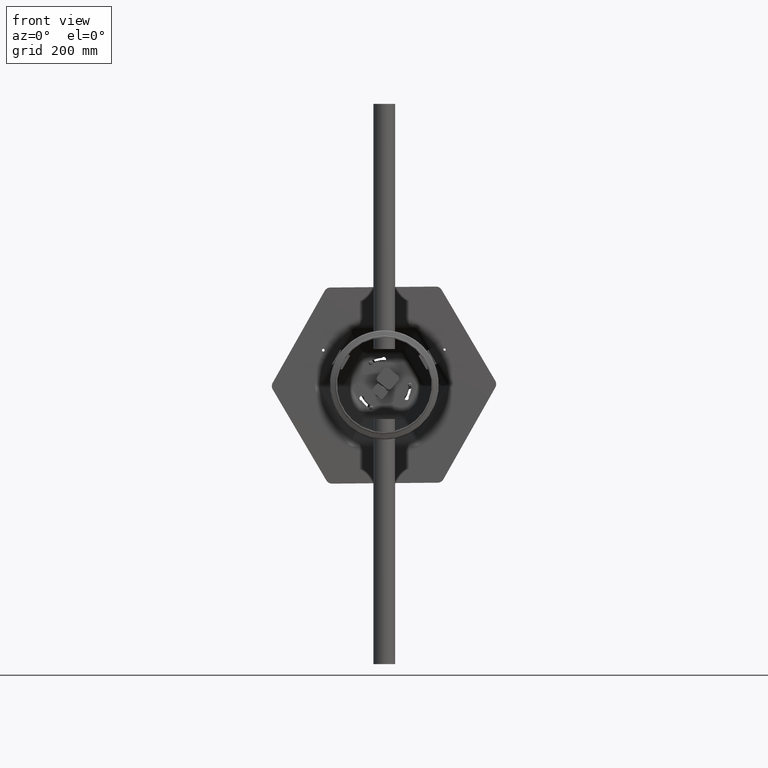
[diagram: clean part render]
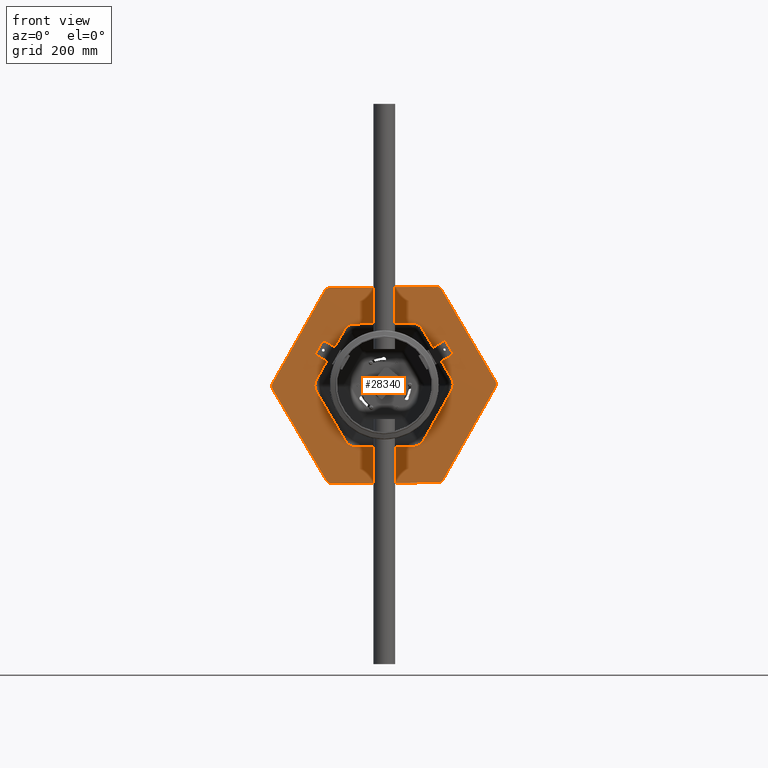
[diagram: same view with one face highlighted and labeled with its STEP entity id]
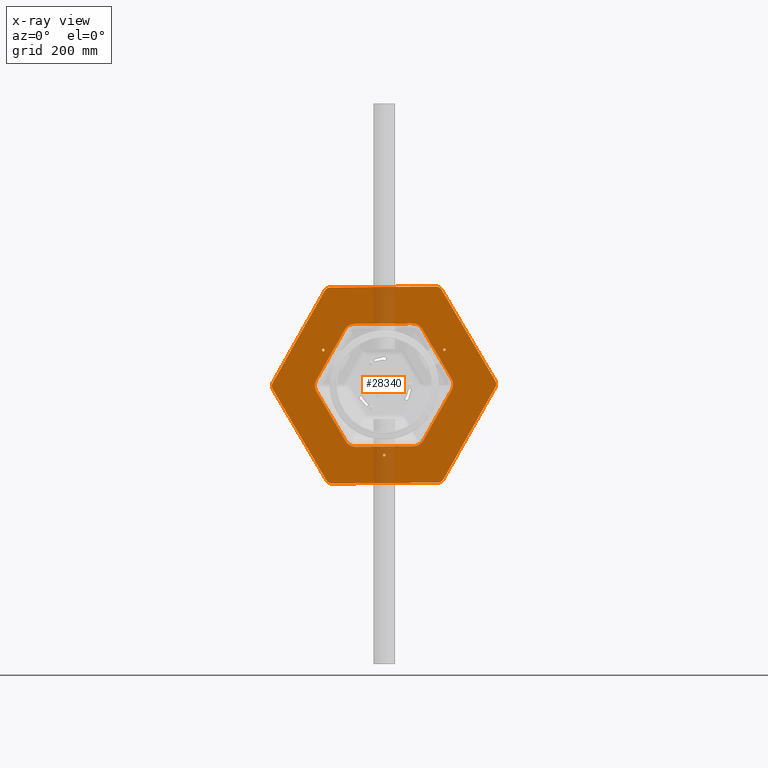
[diagram: x-ray of the same camera — body ghosted, the highlighted face saturated]
A machine part, front view. The second image highlights one B-rep face of the part: STEP entity #28340.
The next image is the same camera in x-ray: the body ghosted, the highlighted face saturated — about 8% of this face is hidden behind the body in this view.
In plain terms, the highlighted planar face has unit normal (-0, 1, 0).
Its self-contained STEP definition (entity closure, byte-faithful):
#504 = CARTESIAN_POINT ( 'NONE',  ( 112.8088919301160331, 1.068607339280240081E-13, 0.0000000000000000000 ) ) ;
#519 = ORIENTED_EDGE ( 'NONE', *, *, #39290, .F. ) ;
#523 = ORIENTED_EDGE ( 'NONE', *, *, #37301, .T. ) ;
#591 = AXIS2_PLACEMENT_3D ( 'NONE', #20092, #45070, #23690 ) ;
#631 = ORIENTED_EDGE ( 'NONE', *, *, #38746, .T. ) ;
#1304 = CARTESIAN_POINT ( 'NONE',  ( -102.2335756172568466, -71.23590584283074634, 0.0000000000000000000 ) ) ;
#1372 = CARTESIAN_POINT ( 'NONE',  ( 61.19974159824982252, 111.8859771665176766, 0.0000000000000000000 ) ) ;
#1731 = AXIS2_PLACEMENT_3D ( 'NONE', #3036, #28125, #6619 ) ;
#1756 = CARTESIAN_POINT ( 'NONE',  ( -112.8088919301161042, -52.91892068284656858, 0.0000000000000000000 ) ) ;
#2083 =( BOUNDED_CURVE ( )  B_SPLINE_CURVE ( 3, ( #33890, #5187, #37496, #16056 ),
 .UNSPECIFIED., .F., .F. ) 
 B_SPLINE_CURVE_WITH_KNOTS ( ( 4, 4 ),
 ( 2.640144173555560414, 3.643041133624024930 ),
 .UNSPECIFIED. ) 
 CURVE ( )  GEOMETRIC_REPRESENTATION_ITEM ( )  RATIONAL_B_SPLINE_CURVE ( ( 1.000000000000000000, 0.9179248021248425093, 0.9179248021248425093, 1.000000000000000000 ) ) 
 REPRESENTATION_ITEM ( '' )  );
#2292 = CARTESIAN_POINT ( 'NONE',  ( 7.806255641895631925E-15, 193.9896904477142527, 0.0000000000000000000 ) ) ;
#2441 = ORIENTED_EDGE ( 'NONE', *, *, #14442, .T. ) ;
#2538 = EDGE_CURVE ( 'NONE', #35388, #18569, #16234, .T. ) ;
#3036 = CARTESIAN_POINT ( 'NONE',  ( -168.0000000000000000, 96.99484522385709795, 0.0000000000000000000 ) ) ;
#3234 = VERTEX_POINT ( 'NONE', #44021 ) ;
#3351 = ORIENTED_EDGE ( 'NONE', *, *, #11552, .T. ) ;
#3444 = EDGE_LOOP ( 'NONE', ( #42016, #23944, #11982, #44883, #11850, #36271, #36917, #6567, #5769, #21012, #2441, #523 ) ) ;
#3460 = CARTESIAN_POINT ( 'NONE',  ( -1.821459649775647449E-14, -193.9896904477142812, 0.0000000000000000000 ) ) ;
#3506 = CARTESIAN_POINT ( 'NONE',  ( -6.000000000000008882, 204.3819952931275168, 0.0000000000000000000 ) ) ;
#3533 = LINE ( 'NONE', #40432, #39397 ) ;
#3765 = AXIS2_PLACEMENT_3D ( 'NONE', #39438, #18024, #42990 ) ;
#3791 = CARTESIAN_POINT ( 'NONE',  ( 112.8088919301160900, -52.91892068284654016, 0.0000000000000000000 ) ) ;
#3979 = EDGE_CURVE ( 'NONE', #41088, #39535, #39113, .T. ) ;
#4050 = ORIENTED_EDGE ( 'NONE', *, *, #21219, .T. ) ;
#4083 = DIRECTION ( 'NONE',  ( -9.472722593022467068E-16, 1.000000000000000000, -0.0000000000000000000 ) ) ;
#4086 = CIRCLE ( 'NONE', #591, 12.00000000000001066 ) ;
#4200 = VERTEX_POINT ( 'NONE', #45866 ) ;
#4406 =( BOUNDED_CURVE ( )  B_SPLINE_CURVE ( 3, ( #1756, #26826, #12553, #37628 ),
 .UNSPECIFIED., .F., .F. ) 
 B_SPLINE_CURVE_WITH_KNOTS ( ( 4, 4 ),
 ( 2.640144173555559526, 3.643041133624025818 ),
 .UNSPECIFIED. ) 
 CURVE ( )  GEOMETRIC_REPRESENTATION_ITEM ( )  RATIONAL_B_SPLINE_CURVE ( ( 1.000000000000000000, 0.9179248021248422873, 0.9179248021248422873, 1.000000000000000000 ) ) 
 REPRESENTATION_ITEM ( '' )  );
#4512 = EDGE_CURVE ( 'NONE', #5458, #39842, #40187, .T. ) ;
#4583 = DIRECTION ( 'NONE',  ( 0.0000000000000000000, 0.0000000000000000000, -1.000000000000000000 ) ) ;
#5187 = CARTESIAN_POINT ( 'NONE',  ( -108.9685932156030077, 67.34744161942873575, 0.0000000000000000000 ) ) ;
#5359 = DIRECTION ( 'NONE',  ( -0.8660254037844385966, -0.5000000000000002220, 0.0000000000000000000 ) ) ;
#5379 = AXIS2_PLACEMENT_3D ( 'NONE', #40659, #19257, #44229 ) ;
#5458 = VERTEX_POINT ( 'NONE', #37121 ) ;
#5630 = ORIENTED_EDGE ( 'NONE', *, *, #3979, .F. ) ;
#5769 = ORIENTED_EDGE ( 'NONE', *, *, #31368, .T. ) ;
#5887 = DIRECTION ( 'NONE',  ( 1.000000000000000000, 4.625929269271485322E-15, 0.0000000000000000000 ) ) ;
#5891 = EDGE_CURVE ( 'NONE', #38718, #8217, #37312, .T. ) ;
#6043 = CARTESIAN_POINT ( 'NONE',  ( -112.8088919301161326, -5.343036696401209239E-14, 0.0000000000000000000 ) ) ;
#6101 = DIRECTION ( 'NONE',  ( -0.8660254037844385966, 0.5000000000000000000, 0.0000000000000000000 ) ) ;
#6567 = ORIENTED_EDGE ( 'NONE', *, *, #22599, .T. ) ;
#6601 = ORIENTED_EDGE ( 'NONE', *, *, #10633, .T. ) ;
#6619 = DIRECTION ( 'NONE',  ( 1.000000000000000000, 0.0000000000000000000, 0.0000000000000000000 ) ) ;
#7047 = DIRECTION ( 'NONE',  ( 1.000000000000000000, -2.312964634635742661E-15, 0.0000000000000000000 ) ) ;
#7123 = EDGE_CURVE ( 'NONE', #35605, #11692, #3533, .T. ) ;
#7125 = CARTESIAN_POINT ( 'NONE',  ( 112.8088919301159763, 60.69584912965067502, 0.0000000000000000000 ) ) ;
#7328 = ORIENTED_EDGE ( 'NONE', *, *, #14103, .F. ) ;
#7343 = VERTEX_POINT ( 'NONE', #31189 ) ;
#7594 = CARTESIAN_POINT ( 'NONE',  ( -174.0000000000000853, 107.3871500692703194, 0.0000000000000000000 ) ) ;
#7633 = CIRCLE ( 'NONE', #3765, 2.499999999999919176 ) ;
#8034 = LINE ( 'NONE', #23148, #35537 ) ;
#8217 = VERTEX_POINT ( 'NONE', #34781 ) ;
#8266 = ORIENTED_EDGE ( 'NONE', *, *, #35359, .F. ) ;
#8331 = VERTEX_POINT ( 'NONE', #21313 ) ;
#9130 = CARTESIAN_POINT ( 'NONE',  ( -10.57531631285923446, -124.1548265256772225, 0.0000000000000000000 ) ) ;
#9160 = EDGE_LOOP ( 'NONE', ( #41718, #22083 ) ) ;
#10162 = CARTESIAN_POINT ( 'NONE',  ( 56.40444596505805919, -97.69536618425394181, 0.0000000000000000000 ) ) ;
#10193 = DIRECTION ( 'NONE',  ( -0.0000000000000000000, -0.0000000000000000000, -1.000000000000000000 ) ) ;
#10252 = ORIENTED_EDGE ( 'NONE', *, *, #22780, .T. ) ;
#10272 = ORIENTED_EDGE ( 'NONE', *, *, #27599, .T. ) ;
#10633 = EDGE_CURVE ( 'NONE', #29306, #26078, #17530, .T. ) ;
#10751 = CARTESIAN_POINT ( 'NONE',  ( 102.2335756172567471, 71.23590584283083160, 0.0000000000000000000 ) ) ;
#10754 = FACE_OUTER_BOUND ( 'NONE', #42409, .T. ) ;
#11358 = CIRCLE ( 'NONE', #5379, 2.500000000000023093 ) ;
#11411 = CARTESIAN_POINT ( 'NONE',  ( 63.69974159824984383, 111.8859771665176766, 0.0000000000000000000 ) ) ;
#11552 = EDGE_CURVE ( 'NONE', #41088, #39842, #34804, .T. ) ;
#11692 = VERTEX_POINT ( 'NONE', #17674 ) ;
#11850 = ORIENTED_EDGE ( 'NONE', *, *, #32327, .T. ) ;
#11874 = FACE_BOUND ( 'NONE', #36967, .T. ) ;
#11956 = EDGE_CURVE ( 'NONE', #18569, #17220, #45937, .T. ) ;
#11982 = ORIENTED_EDGE ( 'NONE', *, *, #45579, .T. ) ;
#12155 = CIRCLE ( 'NONE', #29591, 12.00000000000001066 ) ;
#12553 = CARTESIAN_POINT ( 'NONE',  ( -108.9685932156029793, -67.34744161942873575, 0.0000000000000000000 ) ) ;
#12613 = DIRECTION ( 'NONE',  ( 0.8660254037844385966, -0.4999999999999999445, 0.0000000000000000000 ) ) ;
#12680 = ORIENTED_EDGE ( 'NONE', *, *, #4512, .F. ) ;
#12836 = CARTESIAN_POINT ( 'NONE',  ( -3.642919299551294898E-14, -207.8460969082653094, 0.0000000000000000000 ) ) ;
#13248 = CIRCLE ( 'NONE', #19151, 2.499999999999919176 ) ;
#13582 = DIRECTION ( 'NONE',  ( 4.736361296511237478E-16, -1.000000000000000000, -0.0000000000000000000 ) ) ;
#13604 = VECTOR ( 'NONE', #44564, 1000.000000000000114 ) ;
#13787 = DIRECTION ( 'NONE',  ( 0.8660254037844387076, 0.4999999999999998890, -0.0000000000000000000 ) ) ;
#13926 = AXIS2_PLACEMENT_3D ( 'NONE', #16192, #41190, #19800 ) ;
#14011 = EDGE_CURVE ( 'NONE', #16452, #37443, #7633, .T. ) ;
#14103 = EDGE_CURVE ( 'NONE', #3234, #19969, #24479, .T. ) ;
#14127 = AXIS2_PLACEMENT_3D ( 'NONE', #26052, #4583, #29660 ) ;
#14362 = EDGE_LOOP ( 'NONE', ( #21299, #7328 ) ) ;
#14402 = CIRCLE ( 'NONE', #14127, 2.499999999999925837 ) ;
#14442 = EDGE_CURVE ( 'NONE', #8331, #31281, #37329, .T. ) ;
#15029 = DIRECTION ( 'NONE',  ( -1.000000000000000000, 0.0000000000000000000, 0.0000000000000000000 ) ) ;
#15060 = CARTESIAN_POINT ( 'NONE',  ( -128.5606159927932879, -0.9905632959438803731, 0.0000000000000000000 ) ) ;
#15416 = CARTESIAN_POINT ( 'NONE',  ( 108.9685932156029367, -67.34744161942870733, 0.0000000000000000000 ) ) ;
#16056 = CARTESIAN_POINT ( 'NONE',  ( -112.8088919301161610, 52.91892068284657569, 0.0000000000000000000 ) ) ;
#16192 = CARTESIAN_POINT ( 'NONE',  ( 168.0000000000000284, -96.99484522385709795, 0.0000000000000000000 ) ) ;
#16234 = LINE ( 'NONE', #24099, #44726 ) ;
#16389 = CARTESIAN_POINT ( 'NONE',  ( 112.8088919301159763, 52.91892068284668937, 0.0000000000000000000 ) ) ;
#16424 = AXIS2_PLACEMENT_3D ( 'NONE', #3460, #28565, #7047 ) ;
#16452 = VERTEX_POINT ( 'NONE', #20574 ) ;
#16475 = DIRECTION ( 'NONE',  ( 0.8660254037844385966, 0.5000000000000001110, 0.0000000000000000000 ) ) ;
#17162 = AXIS2_PLACEMENT_3D ( 'NONE', #42356, #20965, #45938 ) ;
#17220 = VERTEX_POINT ( 'NONE', #43584 ) ;
#17300 = LINE ( 'NONE', #12836, #25664 ) ;
#17530 = CIRCLE ( 'NONE', #16424, 12.00000000000000000 ) ;
#17674 = CARTESIAN_POINT ( 'NONE',  ( -180.0000000000000284, -96.99484522385709795, 0.0000000000000000000 ) ) ;
#17734 = VERTEX_POINT ( 'NONE', #33220 ) ;
#18024 = DIRECTION ( 'NONE',  ( 0.0000000000000000000, 0.0000000000000000000, -1.000000000000000000 ) ) ;
#18071 = ORIENTED_EDGE ( 'NONE', *, *, #5891, .F. ) ;
#18286 = VECTOR ( 'NONE', #13582, 1000.000000000000000 ) ;
#18418 = CARTESIAN_POINT ( 'NONE',  ( 102.2335756172567471, 71.23590584283083160, 0.0000000000000000000 ) ) ;
#18489 = VECTOR ( 'NONE', #13787, 1000.000000000000000 ) ;
#18569 = VERTEX_POINT ( 'NONE', #41871 ) ;
#18677 = DIRECTION ( 'NONE',  ( -1.000000000000000000, 0.0000000000000000000, 0.0000000000000000000 ) ) ;
#18959 = CARTESIAN_POINT ( 'NONE',  ( -112.8088919301161042, -52.91892068284656858, 0.0000000000000000000 ) ) ;
#19151 = AXIS2_PLACEMENT_3D ( 'NONE', #15060, #40076, #18677 ) ;
#19257 = DIRECTION ( 'NONE',  ( 0.0000000000000000000, 0.0000000000000000000, -1.000000000000000000 ) ) ;
#19402 = CARTESIAN_POINT ( 'NONE',  ( 64.49258023428306785, -110.8974878807649702, -0.0000000000000000000 ) ) ;
#19599 = CARTESIAN_POINT ( 'NONE',  ( 56.40444596505804498, 97.69536618425398444, 0.0000000000000000000 ) ) ;
#19742 = DIRECTION ( 'NONE',  ( -0.8660254037844388186, -0.4999999999999997224, 0.0000000000000000000 ) ) ;
#19800 = DIRECTION ( 'NONE',  ( 1.000000000000000000, 0.0000000000000000000, 0.0000000000000000000 ) ) ;
#19850 = CARTESIAN_POINT ( 'NONE',  ( 3.840298714513155964, 128.0432907490792047, 0.0000000000000000000 ) ) ;
#19969 = VERTEX_POINT ( 'NONE', #1372 ) ;
#20092 = CARTESIAN_POINT ( 'NONE',  ( 168.0000000000000284, 96.99484522385711216, 0.0000000000000000000 ) ) ;
#20102 = VECTOR ( 'NONE', #5359, 999.9999999999998863 ) ;
#20308 = FACE_BOUND ( 'NONE', #3444, .T. ) ;
#20574 = CARTESIAN_POINT ( 'NONE',  ( -126.0606159927933589, -0.9905632959438801510, 0.0000000000000000000 ) ) ;
#20965 = DIRECTION ( 'NONE',  ( 0.0000000000000000000, 0.0000000000000000000, 1.000000000000000000 ) ) ;
#21012 = ORIENTED_EDGE ( 'NONE', *, *, #44909, .T. ) ;
#21178 = VECTOR ( 'NONE', #6101, 1000.000000000000227 ) ;
#21219 = EDGE_CURVE ( 'NONE', #4200, #11692, #12155, .T. ) ;
#21299 = ORIENTED_EDGE ( 'NONE', *, *, #43870, .F. ) ;
#21313 = CARTESIAN_POINT ( 'NONE',  ( -112.8088919301161610, 52.91892068284657569, 0.0000000000000000000 ) ) ;
#21858 = LINE ( 'NONE', #34423, #39750 ) ;
#21944 = CARTESIAN_POINT ( 'NONE',  ( 180.0000000000000568, -96.99484522385709795, 0.0000000000000000000 ) ) ;
#22083 = ORIENTED_EDGE ( 'NONE', *, *, #14011, .F. ) ;
#22384 = VERTEX_POINT ( 'NONE', #3791 ) ;
#22584 = CARTESIAN_POINT ( 'NONE',  ( 112.8088919301160900, -52.91892068284654016, 0.0000000000000000000 ) ) ;
#22599 = EDGE_CURVE ( 'NONE', #36361, #37677, #44561, .T. ) ;
#22628 = LINE ( 'NONE', #504, #38310 ) ;
#22780 = EDGE_CURVE ( 'NONE', #35605, #39535, #39794, .T. ) ;
#22918 = CARTESIAN_POINT ( 'NONE',  ( 180.0000000000000568, 96.99484522385711216, 0.0000000000000000000 ) ) ;
#22974 = DIRECTION ( 'NONE',  ( -1.000000000000000000, 0.0000000000000000000, 0.0000000000000000000 ) ) ;
#23148 = CARTESIAN_POINT ( 'NONE',  ( -56.40444596505804498, 97.69536618425397023, 0.0000000000000000000 ) ) ;
#23221 = CARTESIAN_POINT ( 'NONE',  ( 66.99258023428301101, -110.8974878807649702, 0.0000000000000000000 ) ) ;
#23420 = CARTESIAN_POINT ( 'NONE',  ( -10.57531631285922202, 124.1548265256771941, 0.0000000000000000000 ) ) ;
#23690 = DIRECTION ( 'NONE',  ( 1.000000000000000000, -1.156482317317870344E-15, 0.0000000000000000000 ) ) ;
#23944 = ORIENTED_EDGE ( 'NONE', *, *, #11956, .T. ) ;
#24099 = CARTESIAN_POINT ( 'NONE',  ( -56.40444596505805919, -97.69536618425395602, 0.0000000000000000000 ) ) ;
#24479 = CIRCLE ( 'NONE', #30194, 2.500000000000023093 ) ;
#25008 = CARTESIAN_POINT ( 'NONE',  ( 108.9685932156028372, 67.34744161942882101, 0.0000000000000000000 ) ) ;
#25265 = CIRCLE ( 'NONE', #13926, 12.00000000000001066 ) ;
#25477 = VERTEX_POINT ( 'NONE', #43266 ) ;
#25664 = VECTOR ( 'NONE', #16475, 1000.000000000000000 ) ;
#25874 = CARTESIAN_POINT ( 'NONE',  ( 102.2335756172568466, -71.23590584283071792, 0.0000000000000000000 ) ) ;
#26052 = CARTESIAN_POINT ( 'NONE',  ( 64.49258023428306785, -110.8974878807649702, -0.0000000000000000000 ) ) ;
#26078 = VERTEX_POINT ( 'NONE', #28738 ) ;
#26826 = CARTESIAN_POINT ( 'NONE',  ( -112.8088919301161326, -60.69584912965056844, 0.0000000000000000000 ) ) ;
#27015 = CARTESIAN_POINT ( 'NONE',  ( -3.840298714513123546, -128.0432907490792331, 0.0000000000000000000 ) ) ;
#27379 = DIRECTION ( 'NONE',  ( -0.0000000000000000000, -0.0000000000000000000, -1.000000000000000000 ) ) ;
#27591 = CARTESIAN_POINT ( 'NONE',  ( 180.0000000000000568, 103.9230484541326121, 0.0000000000000000000 ) ) ;
#27599 = EDGE_CURVE ( 'NONE', #5458, #44887, #4086, .T. ) ;
#27860 = PLANE ( 'NONE',  #17162 ) ;
#28125 = DIRECTION ( 'NONE',  ( -0.0000000000000000000, -0.0000000000000000000, -1.000000000000000000 ) ) ;
#28340 = ADVANCED_FACE ( 'NONE', ( #11874, #41545, #29817, #20308, #10754 ), #27860, .F. ) ;
#28453 = EDGE_CURVE ( 'NONE', #38264, #42699, #32797, .T. ) ;
#28565 = DIRECTION ( 'NONE',  ( -0.0000000000000000000, -0.0000000000000000000, -1.000000000000000000 ) ) ;
#28738 = CARTESIAN_POINT ( 'NONE',  ( -6.000000000000116351, -204.3819952931275168, 0.0000000000000000000 ) ) ;
#29306 = VERTEX_POINT ( 'NONE', #45371 ) ;
#29591 = AXIS2_PLACEMENT_3D ( 'NONE', #31640, #10193, #35275 ) ;
#29660 = DIRECTION ( 'NONE',  ( -1.000000000000000000, 0.0000000000000000000, 0.0000000000000000000 ) ) ;
#29817 = FACE_BOUND ( 'NONE', #14362, .T. ) ;
#30194 = AXIS2_PLACEMENT_3D ( 'NONE', #11411, #36475, #15029 ) ;
#30746 = EDGE_CURVE ( 'NONE', #7343, #22384, #34831, .T. ) ;
#31189 = CARTESIAN_POINT ( 'NONE',  ( 102.2335756172568466, -71.23590584283071792, 0.0000000000000000000 ) ) ;
#31270 = DIRECTION ( 'NONE',  ( 0.8660254037844387076, -0.4999999999999998335, -0.0000000000000000000 ) ) ;
#31281 = VERTEX_POINT ( 'NONE', #18959 ) ;
#31368 = EDGE_CURVE ( 'NONE', #37677, #25477, #8034, .T. ) ;
#31623 = VECTOR ( 'NONE', #12613, 1000.000000000000114 ) ;
#31640 = CARTESIAN_POINT ( 'NONE',  ( -168.0000000000000000, -96.99484522385716900, 0.0000000000000000000 ) ) ;
#32204 = CARTESIAN_POINT ( 'NONE',  ( 112.8088919301159763, 52.91892068284668937, 0.0000000000000000000 ) ) ;
#32327 = EDGE_CURVE ( 'NONE', #22384, #38264, #22628, .T. ) ;
#32797 =( BOUNDED_CURVE ( )  B_SPLINE_CURVE ( 3, ( #32204, #7125, #25008, #10751 ),
 .UNSPECIFIED., .F., .F. ) 
 B_SPLINE_CURVE_WITH_KNOTS ( ( 4, 4 ),
 ( 2.640144173555559526, 3.643041133624023153 ),
 .UNSPECIFIED. ) 
 CURVE ( )  GEOMETRIC_REPRESENTATION_ITEM ( )  RATIONAL_B_SPLINE_CURVE ( ( 1.000000000000000000, 0.9179248021248425093, 0.9179248021248425093, 1.000000000000000000 ) ) 
 REPRESENTATION_ITEM ( '' )  );
#33022 = EDGE_CURVE ( 'NONE', #42699, #36361, #41020, .T. ) ;
#33220 = CARTESIAN_POINT ( 'NONE',  ( 174.0000000000000568, -107.3871500692703336, 0.0000000000000000000 ) ) ;
#33890 = CARTESIAN_POINT ( 'NONE',  ( -102.2335756172569035, 71.23590584283071792, 0.0000000000000000000 ) ) ;
#34051 = CARTESIAN_POINT ( 'NONE',  ( 3.840298714513109335, -128.0432907490792331, 0.0000000000000000000 ) ) ;
#34077 = CARTESIAN_POINT ( 'NONE',  ( -180.0000000000000284, -103.9230484541326831, 0.0000000000000000000 ) ) ;
#34206 = CARTESIAN_POINT ( 'NONE',  ( 10.57531631285921492, -124.1548265256772083, 0.0000000000000000000 ) ) ;
#34423 = CARTESIAN_POINT ( 'NONE',  ( 180.0000000000000568, -103.9230484541325978, 0.0000000000000000000 ) ) ;
#34689 = CARTESIAN_POINT ( 'NONE',  ( 6.000000000000032863, 204.3819952931275168, 0.0000000000000000000 ) ) ;
#34781 = CARTESIAN_POINT ( 'NONE',  ( 61.99258023428314601, -110.8974878807649702, -0.0000000000000000000 ) ) ;
#34804 = CIRCLE ( 'NONE', #40105, 12.00000000000000000 ) ;
#34831 =( BOUNDED_CURVE ( )  B_SPLINE_CURVE ( 3, ( #25874, #15416, #43978, #22584 ),
 .UNSPECIFIED., .F., .F. ) 
 B_SPLINE_CURVE_WITH_KNOTS ( ( 4, 4 ),
 ( 2.640144173555562190, 3.643041133624028038 ),
 .UNSPECIFIED. ) 
 CURVE ( )  GEOMETRIC_REPRESENTATION_ITEM ( )  RATIONAL_B_SPLINE_CURVE ( ( 1.000000000000000000, 0.9179248021248422873, 0.9179248021248422873, 1.000000000000000000 ) ) 
 REPRESENTATION_ITEM ( '' )  );
#35275 = DIRECTION ( 'NONE',  ( 1.000000000000000000, 2.312964634635740689E-15, 0.0000000000000000000 ) ) ;
#35359 = EDGE_CURVE ( 'NONE', #8217, #38718, #14402, .T. ) ;
#35388 = VERTEX_POINT ( 'NONE', #1304 ) ;
#35537 = VECTOR ( 'NONE', #19742, 1000.000000000000000 ) ;
#35605 = VERTEX_POINT ( 'NONE', #41963 ) ;
#35710 = ORIENTED_EDGE ( 'NONE', *, *, #40209, .F. ) ;
#36271 = ORIENTED_EDGE ( 'NONE', *, *, #28453, .T. ) ;
#36361 = VERTEX_POINT ( 'NONE', #39090 ) ;
#36475 = DIRECTION ( 'NONE',  ( 0.0000000000000000000, 0.0000000000000000000, -1.000000000000000000 ) ) ;
#36642 = CARTESIAN_POINT ( 'NONE',  ( -10.57531631285922202, 124.1548265256771941, 0.0000000000000000000 ) ) ;
#36737 = EDGE_CURVE ( 'NONE', #4200, #26078, #40027, .T. ) ;
#36917 = ORIENTED_EDGE ( 'NONE', *, *, #33022, .T. ) ;
#36967 = EDGE_LOOP ( 'NONE', ( #8266, #18071 ) ) ;
#37121 = CARTESIAN_POINT ( 'NONE',  ( 174.0000000000000568, 107.3871500692703620, 0.0000000000000000000 ) ) ;
#37301 = EDGE_CURVE ( 'NONE', #31281, #35388, #4406, .T. ) ;
#37312 = CIRCLE ( 'NONE', #42293, 2.499999999999925837 ) ;
#37329 = LINE ( 'NONE', #6043, #18286 ) ;
#37443 = VERTEX_POINT ( 'NONE', #45218 ) ;
#37496 = CARTESIAN_POINT ( 'NONE',  ( -112.8088919301161468, 60.69584912965056134, 0.0000000000000000000 ) ) ;
#37531 = LINE ( 'NONE', #10162, #18489 ) ;
#37628 = CARTESIAN_POINT ( 'NONE',  ( -102.2335756172568466, -71.23590584283074634, 0.0000000000000000000 ) ) ;
#37651 = CARTESIAN_POINT ( 'NONE',  ( 1.040834085586084257E-14, 207.8460969082652809, 0.0000000000000000000 ) ) ;
#37677 = VERTEX_POINT ( 'NONE', #36642 ) ;
#38264 = VERTEX_POINT ( 'NONE', #16389 ) ;
#38310 = VECTOR ( 'NONE', #4083, 1000.000000000000000 ) ;
#38334 = ORIENTED_EDGE ( 'NONE', *, *, #7123, .F. ) ;
#38718 = VERTEX_POINT ( 'NONE', #23221 ) ;
#38746 = EDGE_CURVE ( 'NONE', #41630, #17734, #25265, .T. ) ;
#39090 = CARTESIAN_POINT ( 'NONE',  ( 10.57531631285927531, 124.1548265256771941, 0.0000000000000000000 ) ) ;
#39113 = LINE ( 'NONE', #37651, #20102 ) ;
#39290 = EDGE_CURVE ( 'NONE', #41630, #44887, #21858, .T. ) ;
#39397 = VECTOR ( 'NONE', #44000, 1000.000000000000000 ) ;
#39438 = CARTESIAN_POINT ( 'NONE',  ( -128.5606159927932879, -0.9905632959438803731, 0.0000000000000000000 ) ) ;
#39535 = VERTEX_POINT ( 'NONE', #7594 ) ;
#39750 = VECTOR ( 'NONE', #41751, 1000.000000000000000 ) ;
#39794 = CIRCLE ( 'NONE', #1731, 12.00000000000001066 ) ;
#39842 = VERTEX_POINT ( 'NONE', #34689 ) ;
#40027 = LINE ( 'NONE', #34077, #31623 ) ;
#40076 = DIRECTION ( 'NONE',  ( 0.0000000000000000000, 0.0000000000000000000, -1.000000000000000000 ) ) ;
#40105 = AXIS2_PLACEMENT_3D ( 'NONE', #2292, #27379, #5887 ) ;
#40187 = LINE ( 'NONE', #27591, #21178 ) ;
#40209 = EDGE_CURVE ( 'NONE', #29306, #17734, #17300, .T. ) ;
#40432 = CARTESIAN_POINT ( 'NONE',  ( -180.0000000000000284, 103.9230484541325836, 0.0000000000000000000 ) ) ;
#40659 = CARTESIAN_POINT ( 'NONE',  ( 63.69974159824984383, 111.8859771665176766, 0.0000000000000000000 ) ) ;
#41020 = LINE ( 'NONE', #19599, #13604 ) ;
#41083 = CARTESIAN_POINT ( 'NONE',  ( -3.840298714513100897, 128.0432907490792047, 0.0000000000000000000 ) ) ;
#41088 = VERTEX_POINT ( 'NONE', #3506 ) ;
#41190 = DIRECTION ( 'NONE',  ( -0.0000000000000000000, -0.0000000000000000000, -1.000000000000000000 ) ) ;
#41545 = FACE_BOUND ( 'NONE', #9160, .T. ) ;
#41630 = VERTEX_POINT ( 'NONE', #21944 ) ;
#41684 = EDGE_CURVE ( 'NONE', #37443, #16452, #13248, .T. ) ;
#41718 = ORIENTED_EDGE ( 'NONE', *, *, #41684, .F. ) ;
#41751 = DIRECTION ( 'NONE',  ( 0.0000000000000000000, 1.000000000000000000, 0.0000000000000000000 ) ) ;
#41829 = ORIENTED_EDGE ( 'NONE', *, *, #36737, .F. ) ;
#41871 = CARTESIAN_POINT ( 'NONE',  ( -10.57531631285923446, -124.1548265256772225, 0.0000000000000000000 ) ) ;
#41963 = CARTESIAN_POINT ( 'NONE',  ( -180.0000000000000284, 96.99484522385709795, 0.0000000000000000000 ) ) ;
#42016 = ORIENTED_EDGE ( 'NONE', *, *, #2538, .T. ) ;
#42293 = AXIS2_PLACEMENT_3D ( 'NONE', #19402, #44366, #22974 ) ;
#42356 = CARTESIAN_POINT ( 'NONE',  ( 0.0000000000000000000, 0.0000000000000000000, 0.0000000000000000000 ) ) ;
#42409 = EDGE_LOOP ( 'NONE', ( #5630, #3351, #12680, #10272, #519, #631, #35710, #6601, #41829, #4050, #38334, #10252 ) ) ;
#42699 = VERTEX_POINT ( 'NONE', #18418 ) ;
#42990 = DIRECTION ( 'NONE',  ( -1.000000000000000000, 0.0000000000000000000, 0.0000000000000000000 ) ) ;
#43266 = CARTESIAN_POINT ( 'NONE',  ( -102.2335756172569035, 71.23590584283071792, 0.0000000000000000000 ) ) ;
#43584 = CARTESIAN_POINT ( 'NONE',  ( 10.57531631285921492, -124.1548265256772083, 0.0000000000000000000 ) ) ;
#43870 = EDGE_CURVE ( 'NONE', #19969, #3234, #11358, .T. ) ;
#43978 = CARTESIAN_POINT ( 'NONE',  ( 112.8088919301161042, -60.69584912965054002, 0.0000000000000000000 ) ) ;
#44000 = DIRECTION ( 'NONE',  ( 0.0000000000000000000, -1.000000000000000000, 0.0000000000000000000 ) ) ;
#44021 = CARTESIAN_POINT ( 'NONE',  ( 66.19974159824985804, 111.8859771665176766, 0.0000000000000000000 ) ) ;
#44229 = DIRECTION ( 'NONE',  ( -1.000000000000000000, 0.0000000000000000000, 0.0000000000000000000 ) ) ;
#44366 = DIRECTION ( 'NONE',  ( 0.0000000000000000000, 0.0000000000000000000, -1.000000000000000000 ) ) ;
#44561 =( BOUNDED_CURVE ( )  B_SPLINE_CURVE ( 3, ( #44811, #19850, #41083, #23420 ),
 .UNSPECIFIED., .F., .F. ) 
 B_SPLINE_CURVE_WITH_KNOTS ( ( 4, 4 ),
 ( 2.640144173555559526, 3.643041133624025818 ),
 .UNSPECIFIED. ) 
 CURVE ( )  GEOMETRIC_REPRESENTATION_ITEM ( )  RATIONAL_B_SPLINE_CURVE ( ( 1.000000000000000000, 0.9179248021248422873, 0.9179248021248422873, 1.000000000000000000 ) ) 
 REPRESENTATION_ITEM ( '' )  );
#44564 = DIRECTION ( 'NONE',  ( -0.8660254037844388186, 0.4999999999999996669, -0.0000000000000000000 ) ) ;
#44726 = VECTOR ( 'NONE', #31270, 1000.000000000000000 ) ;
#44811 = CARTESIAN_POINT ( 'NONE',  ( 10.57531631285927531, 124.1548265256771941, 0.0000000000000000000 ) ) ;
#44883 = ORIENTED_EDGE ( 'NONE', *, *, #30746, .T. ) ;
#44887 = VERTEX_POINT ( 'NONE', #22918 ) ;
#44909 = EDGE_CURVE ( 'NONE', #25477, #8331, #2083, .T. ) ;
#45070 = DIRECTION ( 'NONE',  ( -0.0000000000000000000, -0.0000000000000000000, -1.000000000000000000 ) ) ;
#45218 = CARTESIAN_POINT ( 'NONE',  ( -131.0606159927932026, -0.9905632959438803731, 0.0000000000000000000 ) ) ;
#45371 = CARTESIAN_POINT ( 'NONE',  ( 5.999999999999984901, -204.3819952931275452, 0.0000000000000000000 ) ) ;
#45579 = EDGE_CURVE ( 'NONE', #17220, #7343, #37531, .T. ) ;
#45866 = CARTESIAN_POINT ( 'NONE',  ( -174.0000000000000284, -107.3871500692704331, 0.0000000000000000000 ) ) ;
#45937 =( BOUNDED_CURVE ( )  B_SPLINE_CURVE ( 3, ( #9130, #27015, #34051, #34206 ),
 .UNSPECIFIED., .F., .F. ) 
 B_SPLINE_CURVE_WITH_KNOTS ( ( 4, 4 ),
 ( 2.640144173555561302, 3.643041133624024930 ),
 .UNSPECIFIED. ) 
 CURVE ( )  GEOMETRIC_REPRESENTATION_ITEM ( )  RATIONAL_B_SPLINE_CURVE ( ( 1.000000000000000000, 0.9179248021248425093, 0.9179248021248425093, 1.000000000000000000 ) ) 
 REPRESENTATION_ITEM ( '' )  );
#45938 = DIRECTION ( 'NONE',  ( 1.000000000000000000, 0.0000000000000000000, -0.0000000000000000000 ) ) ;